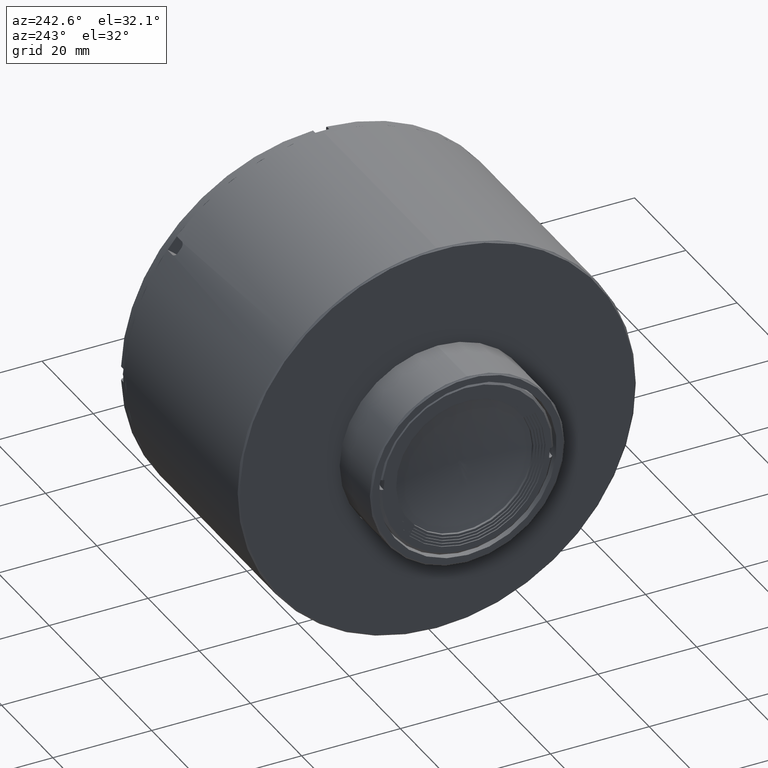
[diagram: clean part render]
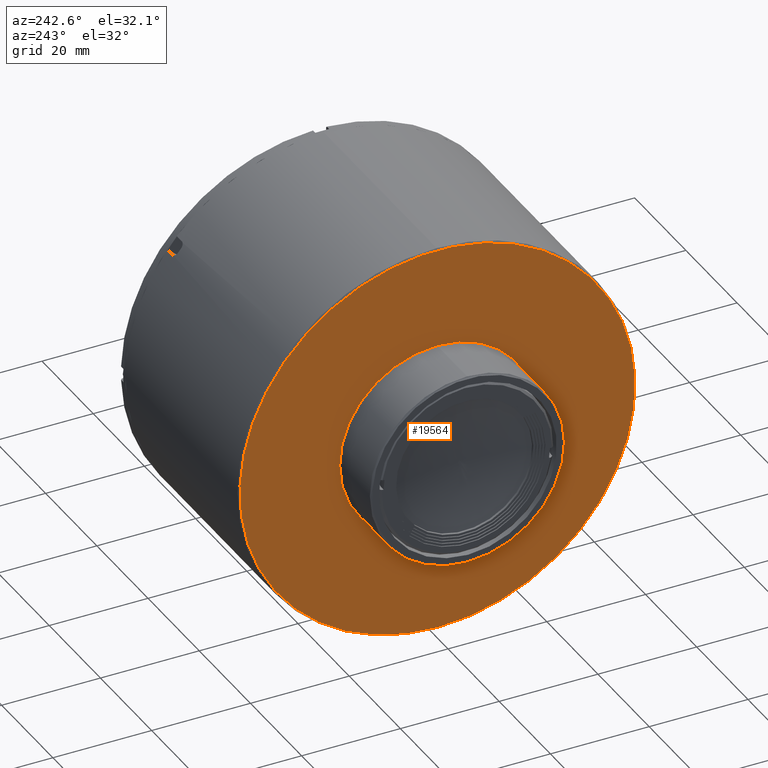
[diagram: same view with one face highlighted and labeled with its STEP entity id]
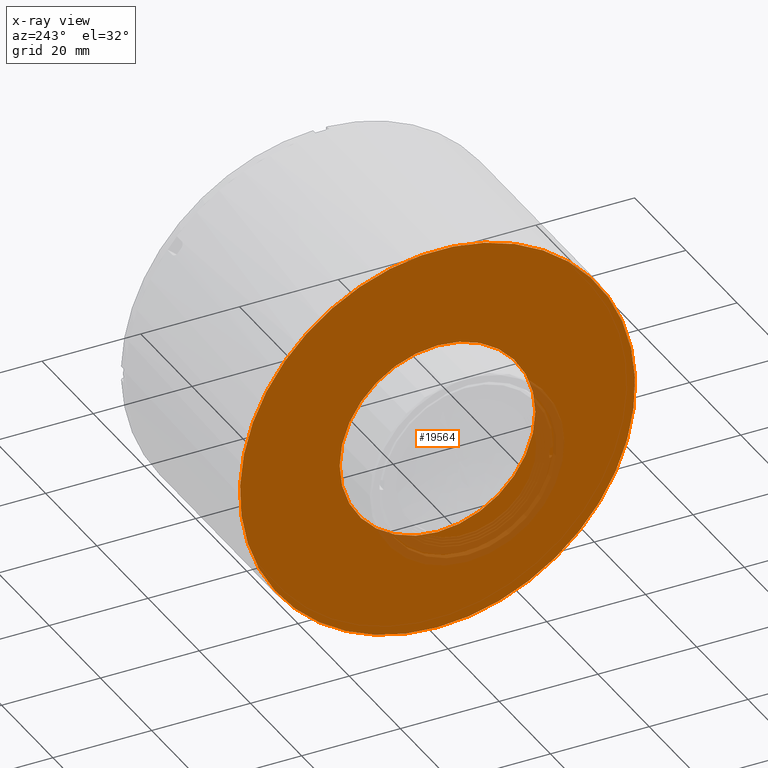
[diagram: x-ray of the same camera — body ghosted, the highlighted face saturated]
A machine part, auxiliary view. The second image highlights one B-rep face of the part: STEP entity #19564.
The next image is the same camera in x-ray: the body ghosted, the highlighted face saturated — about 8% of this face is hidden behind the body in this view.
In plain terms, the highlighted planar face has unit normal (1, 0, 0).
Its self-contained STEP definition (entity closure, byte-faithful):
#1125 = EDGE_CURVE ( 'NONE', #24884, #24884, #41762, .T. ) ;
#2980 = DIRECTION ( 'NONE',  ( 1.000000000000000000, 0.000000000000000000, 0.000000000000000000 ) ) ;
#4242 = EDGE_LOOP ( 'NONE', ( #31566 ) ) ;
#7649 = AXIS2_PLACEMENT_3D ( 'NONE', #8426, #33070, #11409 ) ;
#8426 = CARTESIAN_POINT ( 'NONE',  ( 184.1208642838983565, -1.103418725978676999E-13, -1.249004384131938183E-13 ) ) ;
#8581 = CARTESIAN_POINT ( 'NONE',  ( 184.1208642838983565, -1.103418725978676999E-13, -1.249004384131938183E-13 ) ) ;
#9963 = CIRCLE ( 'NONE', #7649, 19.80000000000000071 ) ;
#10261 = CARTESIAN_POINT ( 'NONE',  ( 184.1208642838983565, 19.79999999999989058, -1.249004384131938183E-13 ) ) ;
#11409 = DIRECTION ( 'NONE',  ( 0.000000000000000000, 0.000000000000000000, 1.000000000000000000 ) ) ;
#13456 = CARTESIAN_POINT ( 'NONE',  ( 184.1208642838983565, -1.103418725978676999E-13, 19.79999999999987637 ) ) ;
#16229 = EDGE_LOOP ( 'NONE', ( #39195 ) ) ;
#17097 = FACE_OUTER_BOUND ( 'NONE', #16229, .T. ) ;
#17568 = FACE_BOUND ( 'NONE', #4242, .T. ) ;
#19564 = ADVANCED_FACE ( 'NONE', ( #17568, #17097 ), #28755, .F. ) ;
#21237 = CARTESIAN_POINT ( 'NONE',  ( 184.1208642838983565, -1.103418725978676999E-13, -40.00000000000017764 ) ) ;
#24884 = VERTEX_POINT ( 'NONE', #21237 ) ;
#25235 = EDGE_CURVE ( 'NONE', #46748, #46748, #9963, .T. ) ;
#26594 = DIRECTION ( 'NONE',  ( 0.000000000000000000, 0.000000000000000000, -1.000000000000000000 ) ) ;
#26824 = DIRECTION ( 'NONE',  ( 1.000000000000000000, 0.000000000000000000, 0.000000000000000000 ) ) ;
#28755 = PLANE ( 'NONE',  #32070 ) ;
#31566 = ORIENTED_EDGE ( 'NONE', *, *, #25235, .F. ) ;
#32070 = AXIS2_PLACEMENT_3D ( 'NONE', #10261, #2980, #47472 ) ;
#33070 = DIRECTION ( 'NONE',  ( -1.000000000000000000, -0.000000000000000000, -0.000000000000000000 ) ) ;
#39195 = ORIENTED_EDGE ( 'NONE', *, *, #1125, .F. ) ;
#41762 = CIRCLE ( 'NONE', #44109, 40.00000000000004974 ) ;
#44109 = AXIS2_PLACEMENT_3D ( 'NONE', #8581, #26824, #26594 ) ;
#46748 = VERTEX_POINT ( 'NONE', #13456 ) ;
#47472 = DIRECTION ( 'NONE',  ( 0.000000000000000000, 0.000000000000000000, -1.000000000000000000 ) ) ;